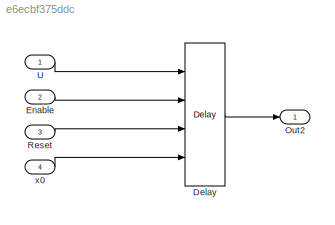
MODEL slx_e6ecbf375ddc
KIND model
CONFIG AbsTol = auto
CONFIG EnableMultiTasking = on
CONFIG FixedStep = 0.200000
CONFIG MaxStep = auto
CONFIG MinStep = auto
CONFIG RelTol = 1e-3
CONFIG SampleTimeConstraint = Unconstrained
CONFIG Solver = FixedStepDiscrete
CONFIG SolverName = FixedStepDiscrete
CONFIG StartTime = 0.0
CONFIG StopTime = 10.0
BLOCK [Delay] Delay
  ExternalReset = Falling
  InitialConditionSource = Input port
  InputPortMap = u0,e6,r5,p4
  Ports = [4, 1]
  ShowEnablePort = on
BLOCK [Inport] Enable
  IconDisplay = Port number
  Port = 2
  PortDimensions = 1
BLOCK [Outport] Out2
  IconDisplay = Port number
BLOCK [Inport] Reset
  IconDisplay = Port number
  OutDataTypeStr = boolean
  Port = 3
  PortDimensions = 1
BLOCK [Inport] U
  IconDisplay = Port number
  PortDimensions = 2
BLOCK [Inport] x0
  IconDisplay = Port number
  Port = 4
LINE Delay:1 -> Out2:1
LINE Enable:1 -> Delay:2
LINE Reset:1 -> Delay:3
LINE U:1 -> Delay:1
LINE x0:1 -> Delay:4
